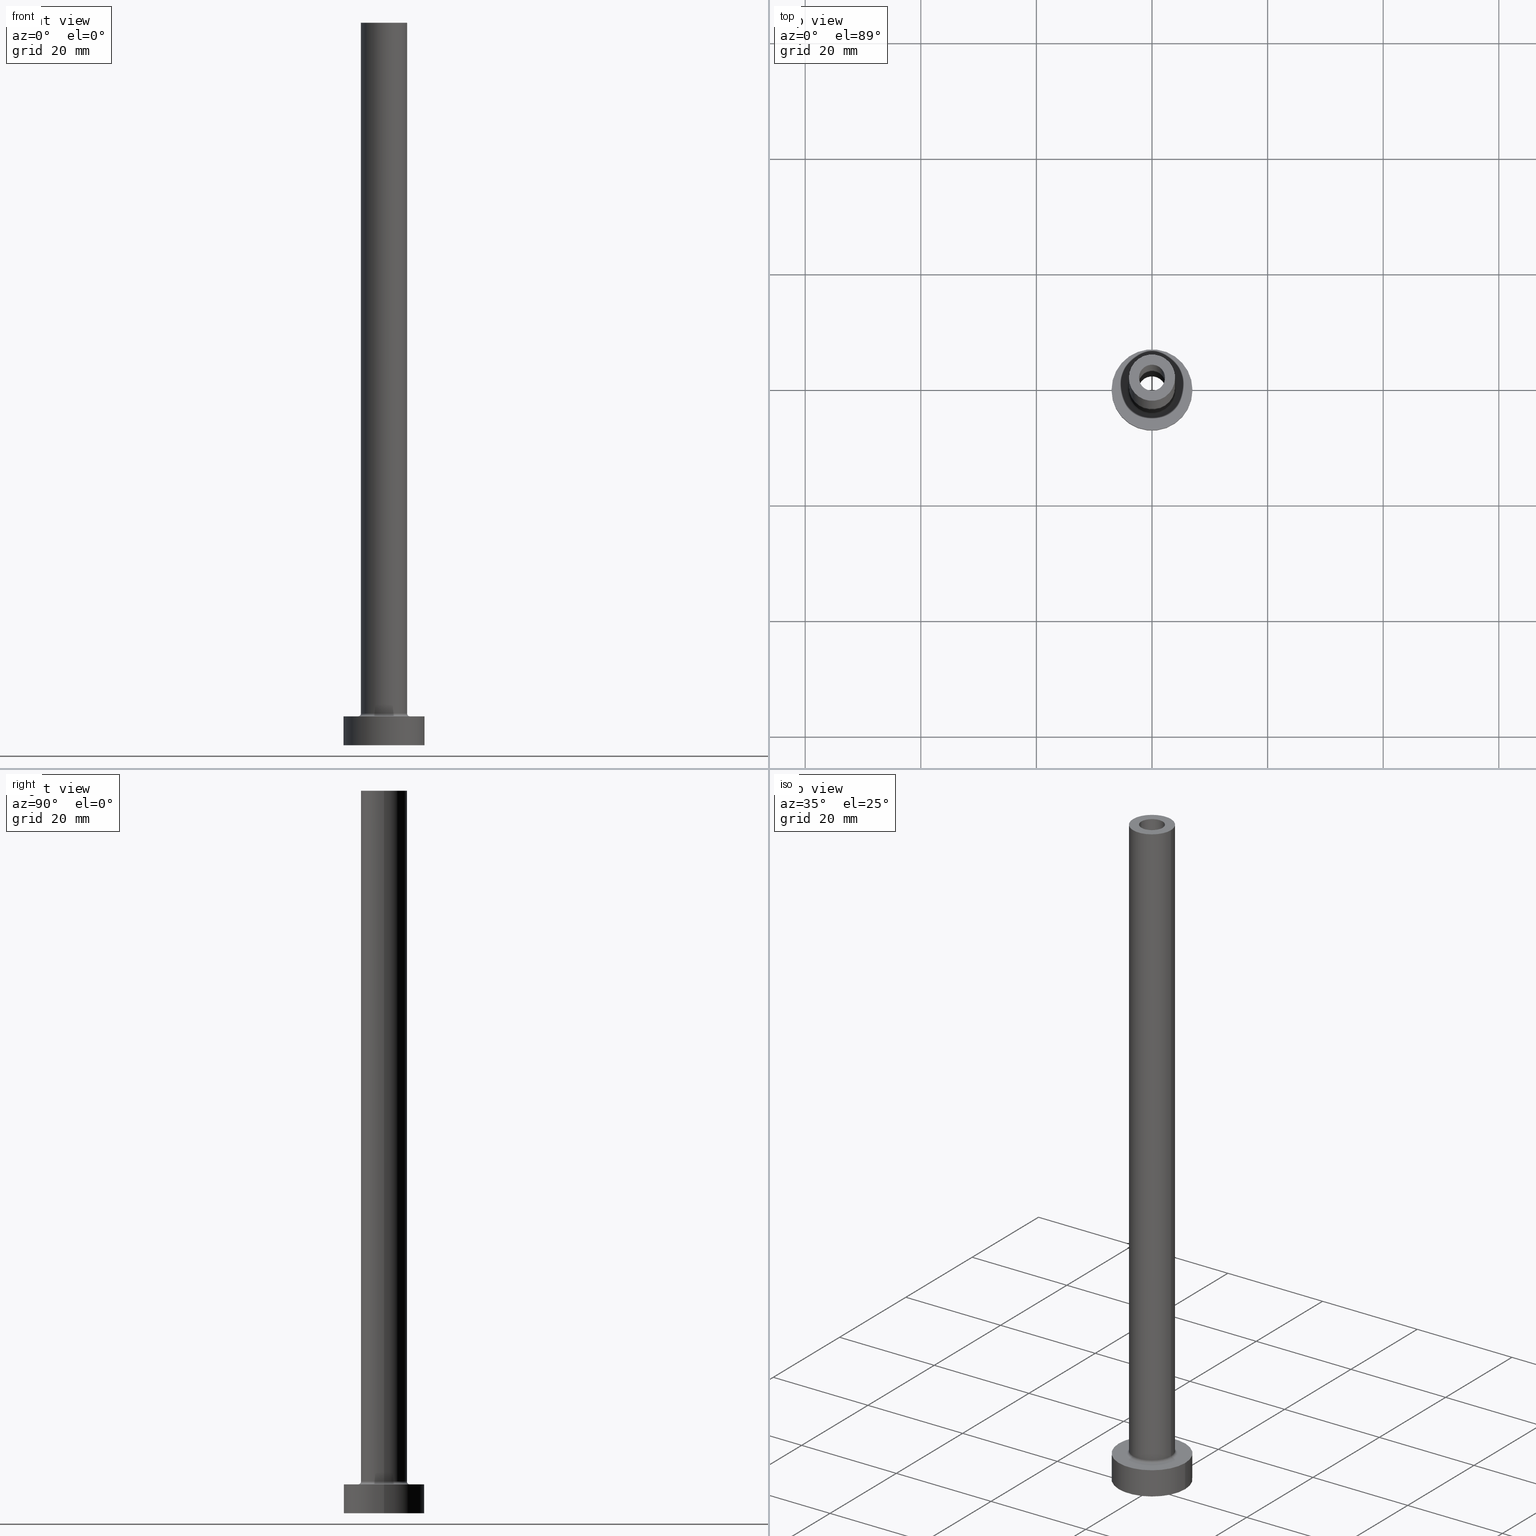
[diagram: canonical four-view strip — front | top / right | iso, engineering-drawing reading convention]
A machine part, canonical four-view strip (front | top / right | iso — engineering-drawing reading convention). The complete STEP part file that produces these views, byte-faithful:
ISO-10303-21;
HEADER;
FILE_DESCRIPTION (( 'STEP AP203' ),
    '1' );
FILE_NAME ('51bd.STEP',
    '2023-02-13T11:05:41',
    ( '' ),
    ( '' ),
    'SwSTEP 2.0',
    'SolidWorks 2019',
    '' );
FILE_SCHEMA (( 'CONFIG_CONTROL_DESIGN' ));
ENDSEC;

DATA;
#1 = AXIS2_PLACEMENT_3D ( 'NONE', #297, #437, #441 ) ;
#2 = DIRECTION ( 'NONE',  ( 0.000000000000000000, 0.000000000000000000, 1.000000000000000000 ) ) ;
#3 = VECTOR ( 'NONE', #90, 1000.000000000000000 ) ;
#4 = CARTESIAN_POINT ( 'NONE',  ( 0.000000000000000000, 0.000000000000000000, 80.00000000000000000 ) ) ;
#5 = DIRECTION ( 'NONE',  ( 0.000000000000000000, 0.000000000000000000, 1.000000000000000000 ) ) ;
#6 = DIRECTION ( 'NONE',  ( 1.000000000000000000, 0.000000000000000000, 0.000000000000000000 ) ) ;
#7 = ORIENTED_EDGE ( 'NONE', *, *, #442, .F. ) ;
#8 = CARTESIAN_POINT ( 'NONE',  ( 2.399999999999999911, 2.939152317953647106E-16, 86.78822509939087126 ) ) ;
#9 = LOCAL_TIME ( 12, 5, 41.00000000000000000, #350 ) ;
#10 = DIRECTION ( 'NONE',  ( 0.000000000000000000, 0.000000000000000000, 1.000000000000000000 ) ) ;
#11 = CARTESIAN_POINT ( 'NONE',  ( -2.250000000000000000, 0.000000000000000000, 125.0000000000000000 ) ) ;
#12 = AXIS2_PLACEMENT_3D ( 'NONE', #337, #231, #136 ) ;
#13 = CC_DESIGN_PERSON_AND_ORGANIZATION_ASSIGNMENT ( #420, #170, ( #176 ) ) ;
#14 = FACE_OUTER_BOUND ( 'NONE', #38, .T. ) ;
#15 = VERTEX_POINT ( 'NONE', #429 ) ;
#16 = VECTOR ( 'NONE', #100, 1000.000000000000000 ) ;
#17 = ORIENTED_EDGE ( 'NONE', *, *, #81, .T. ) ;
#18 = CALENDAR_DATE ( 2023, 13, 2 ) ;
#19 = DIRECTION ( 'NONE',  ( -0.000000000000000000, -0.000000000000000000, -1.000000000000000000 ) ) ;
#20 = EDGE_CURVE ( 'NONE', #15, #394, #424, .T. ) ;
#21 = ORIENTED_EDGE ( 'NONE', *, *, #334, .T. ) ;
#22 = CYLINDRICAL_SURFACE ( 'NONE', #256, 2.250000000000000000 ) ;
#23 = AXIS2_PLACEMENT_3D ( 'NONE', #348, #215, #139 ) ;
#24 = CC_DESIGN_APPROVAL ( #92, ( #265 ) ) ;
#25 = VERTEX_POINT ( 'NONE', #229 ) ;
#26 = DIRECTION ( 'NONE',  ( 1.000000000000000000, 0.000000000000000000, 0.000000000000000000 ) ) ;
#27 = DESIGN_CONTEXT ( 'detailed design', #362, 'design' ) ;
#28 = DIRECTION ( 'NONE',  ( 1.000000000000000000, 0.000000000000000000, 0.000000000000000000 ) ) ;
#29 = LOCAL_TIME ( 12, 5, 41.00000000000000000, #214 ) ;
#30 = CARTESIAN_POINT ( 'NONE',  ( 0.000000000000000000, 0.000000000000000000, 0.000000000000000000 ) ) ;
#31 = EDGE_CURVE ( 'NONE', #450, #247, #70, .T. ) ;
#32 = EDGE_LOOP ( 'NONE', ( #228, #202 ) ) ;
#33 = DIRECTION ( 'NONE',  ( 0.000000000000000000, 0.000000000000000000, -1.000000000000000000 ) ) ;
#34 = COORDINATED_UNIVERSAL_TIME_OFFSET ( 1, 0, .AHEAD. ) ;
#35 = DIRECTION ( 'NONE',  ( 0.000000000000000000, 0.000000000000000000, 1.000000000000000000 ) ) ;
#36 = CIRCLE ( 'NONE', #248, 2.399999999999999911 ) ;
#37 = CARTESIAN_POINT ( 'NONE',  ( -4.500000000000000888, 5.510910596163088569E-16, 5.000000000000002665 ) ) ;
#38 = EDGE_LOOP ( 'NONE', ( #232, #427 ) ) ;
#39 = CARTESIAN_POINT ( 'NONE',  ( 2.250000000000000000, 2.755455298081543792E-16, 125.0000000000000000 ) ) ;
#40 = LINE ( 'NONE', #329, #299 ) ;
#41 = AXIS2_PLACEMENT_3D ( 'NONE', #262, #93, #86 ) ;
#42 = ORIENTED_EDGE ( 'NONE', *, *, #391, .T. ) ;
#43 = CARTESIAN_POINT ( 'NONE',  ( 0.000000000000000000, 0.000000000000000000, 0.000000000000000000 ) ) ;
#44 = AXIS2_PLACEMENT_3D ( 'NONE', #360, #428, #6 ) ;
#45 = DIRECTION ( 'NONE',  ( 1.000000000000000000, 0.000000000000000000, 0.000000000000000000 ) ) ;
#46 = CC_DESIGN_DATE_AND_TIME_ASSIGNMENT ( #277, #377, ( #326 ) ) ;
#47 = CYLINDRICAL_SURFACE ( 'NONE', #294, 2.250000000000000000 ) ;
#48 = VERTEX_POINT ( 'NONE', #366 ) ;
#49 = EDGE_CURVE ( 'NONE', #436, #15, #135, .T. ) ;
#50 = CARTESIAN_POINT ( 'NONE',  ( -7.000000000000000000, 0.000000000000000000, 5.000000000000000000 ) ) ;
#51 = ORIENTED_EDGE ( 'NONE', *, *, #20, .T. ) ;
#52 = AXIS2_PLACEMENT_3D ( 'NONE', #342, #206, #26 ) ;
#53 = CARTESIAN_POINT ( 'NONE',  ( 4.000000000000000000, 4.898587196589412829E-16, 5.500000000000005329 ) ) ;
#54 = VERTEX_POINT ( 'NONE', #125 ) ;
#55 = CIRCLE ( 'NONE', #367, 4.000000000000000000 ) ;
#56 = APPROVAL_STATUS ( 'not_yet_approved' ) ;
#57 = EDGE_CURVE ( 'NONE', #62, #54, #323, .T. ) ;
#58 = CYLINDRICAL_SURFACE ( 'NONE', #168, 4.000000000000000000 ) ;
#59 = ADVANCED_FACE ( 'NONE', ( #187 ), #298, .F. ) ;
#60 = FACE_OUTER_BOUND ( 'NONE', #335, .T. ) ;
#61 = ORIENTED_EDGE ( 'NONE', *, *, #152, .T. ) ;
#62 = VERTEX_POINT ( 'NONE', #155 ) ;
#63 = AXIS2_PLACEMENT_3D ( 'NONE', #353, #35, #115 ) ;
#64 = CIRCLE ( 'NONE', #63, 4.000000000000000000 ) ;
#65 = ORIENTED_EDGE ( 'NONE', *, *, #131, .F. ) ;
#66 = CIRCLE ( 'NONE', #241, 4.000000000000000000 ) ;
#67 = DIRECTION ( 'NONE',  ( -1.000000000000000000, 0.000000000000000000, 0.000000000000000000 ) ) ;
#68 = ORIENTED_EDGE ( 'NONE', *, *, #152, .F. ) ;
#69 = ORIENTED_EDGE ( 'NONE', *, *, #310, .F. ) ;
#70 = CIRCLE ( 'NONE', #234, 0.5000000000000004441 ) ;
#71 = PERSON_AND_ORGANIZATION ( #147, #316 ) ;
#72 = ADVANCED_FACE ( 'NONE', ( #293, #191 ), #158, .T. ) ;
#73 = DIRECTION ( 'NONE',  ( 0.000000000000000000, 0.000000000000000000, 1.000000000000000000 ) ) ;
#74 = EDGE_CURVE ( 'NONE', #169, #394, #190, .T. ) ;
#75 = CALENDAR_DATE ( 2023, 13, 2 ) ;
#76 = DIRECTION ( 'NONE',  ( 1.000000000000000000, 0.000000000000000000, 0.000000000000000000 ) ) ;
#77 = CC_DESIGN_PERSON_AND_ORGANIZATION_ASSIGNMENT ( #308, #242, ( #176 ) ) ;
#78 = APPROVAL_STATUS ( 'not_yet_approved' ) ;
#79 = DIRECTION ( 'NONE',  ( 1.000000000000000000, 0.000000000000000000, 0.000000000000000000 ) ) ;
#80 = DIRECTION ( 'NONE',  ( 0.000000000000000000, 0.000000000000000000, 1.000000000000000000 ) ) ;
#81 = EDGE_CURVE ( 'NONE', #269, #54, #205, .T. ) ;
#82 = CIRCLE ( 'NONE', #287, 7.000000000000000000 ) ;
#83 = CARTESIAN_POINT ( 'NONE',  ( 0.000000000000000000, 0.000000000000000000, 80.00000000000000000 ) ) ;
#84 = VERTEX_POINT ( 'NONE', #446 ) ;
#85 = CARTESIAN_POINT ( 'NONE',  ( 0.000000000000000000, 0.000000000000000000, 5.000000000000000000 ) ) ;
#86 = DIRECTION ( 'NONE',  ( 1.000000000000000000, 0.000000000000000000, 0.000000000000000000 ) ) ;
#87 = APPROVAL ( #78, 'NEUR�EN�' ) ;
#88 = CIRCLE ( 'NONE', #1, 7.000000000000000000 ) ;
#89 = EDGE_CURVE ( 'NONE', #291, #376, #385, .T. ) ;
#90 = DIRECTION ( 'NONE',  ( -0.000000000000000000, -0.000000000000000000, -1.000000000000000000 ) ) ;
#91 = CIRCLE ( 'NONE', #113, 4.500000000000000888 ) ;
#92 = APPROVAL ( #56, 'NEUR�EN�' ) ;
#93 = DIRECTION ( 'NONE',  ( -0.000000000000000000, -0.000000000000000000, -1.000000000000000000 ) ) ;
#94 = DIRECTION ( 'NONE',  ( -0.000000000000000000, -0.000000000000000000, -1.000000000000000000 ) ) ;
#95 = ORIENTED_EDGE ( 'NONE', *, *, #292, .F. ) ;
#96 = ORIENTED_EDGE ( 'NONE', *, *, #131, .T. ) ;
#97 = ADVANCED_FACE ( 'NONE', ( #60 ), #303, .T. ) ;
#98 = AXIS2_PLACEMENT_3D ( 'NONE', #218, #414, #212 ) ;
#99 = ORIENTED_EDGE ( 'NONE', *, *, #310, .T. ) ;
#100 = DIRECTION ( 'NONE',  ( -0.000000000000000000, -0.000000000000000000, -1.000000000000000000 ) ) ;
#101 = DIRECTION ( 'NONE',  ( 0.000000000000000000, 0.000000000000000000, -1.000000000000000000 ) ) ;
#102 = AXIS2_PLACEMENT_3D ( 'NONE', #251, #390, #356 ) ;
#103 = CARTESIAN_POINT ( 'NONE',  ( 0.000000000000000000, 0.000000000000000000, 80.00000000000000000 ) ) ;
#104 = DIRECTION ( 'NONE',  ( 0.000000000000000000, 0.000000000000000000, 1.000000000000000000 ) ) ;
#105 = APPROVAL_PERSON_ORGANIZATION ( #280, #213, #107 ) ;
#106 = PRODUCT ( '51bd', '51bd', '', ( #459 ) ) ;
#107 = APPROVAL_ROLE ( '' ) ;
#108 = DIRECTION ( 'NONE',  ( -0.000000000000000000, -0.000000000000000000, -1.000000000000000000 ) ) ;
#109 = EDGE_LOOP ( 'NONE', ( #388, #180, #320, #134 ) ) ;
#110 = DATE_AND_TIME ( #453, #9 ) ;
#111 = DIRECTION ( 'NONE',  ( 1.000000000000000000, 0.000000000000000000, 0.000000000000000000 ) ) ;
#112 = FACE_OUTER_BOUND ( 'NONE', #244, .T. ) ;
#113 = AXIS2_PLACEMENT_3D ( 'NONE', #85, #94, #154 ) ;
#114 = APPROVAL_STATUS ( 'not_yet_approved' ) ;
#115 = DIRECTION ( 'NONE',  ( 1.000000000000000000, 0.000000000000000000, 0.000000000000000000 ) ) ;
#116 = CARTESIAN_POINT ( 'NONE',  ( 0.000000000000000000, 0.000000000000000000, 125.0000000000000000 ) ) ;
#117 = EDGE_LOOP ( 'NONE', ( #284, #21 ) ) ;
#118 = AXIS2_PLACEMENT_3D ( 'NONE', #271, #309, #142 ) ;
#119 = CARTESIAN_POINT ( 'NONE',  ( 0.000000000000000000, 0.000000000000000000, 5.000000000000000000 ) ) ;
#120 = PLANE ( 'NONE',  #387 ) ;
#121 = CARTESIAN_POINT ( 'NONE',  ( 7.000000000000000000, 8.572527594031473190E-16, 5.000000000000000000 ) ) ;
#122 = ADVANCED_FACE ( 'NONE', ( #405 ), #198, .F. ) ;
#123 = CARTESIAN_POINT ( 'NONE',  ( 4.000000000000000000, 4.898587196589412829E-16, 125.0000000000000000 ) ) ;
#124 = VECTOR ( 'NONE', #253, 1000.000000000000000 ) ;
#125 = CARTESIAN_POINT ( 'NONE',  ( -2.399999999999999911, 0.000000000000000000, 0.000000000000000000 ) ) ;
#126 = CC_DESIGN_APPROVAL ( #87, ( #326 ) ) ;
#127 = CARTESIAN_POINT ( 'NONE',  ( 0.000000000000000000, 0.000000000000000000, 5.500000000000005329 ) ) ;
#128 = ORIENTED_EDGE ( 'NONE', *, *, #411, .T. ) ;
#129 = CARTESIAN_POINT ( 'NONE',  ( 0.000000000000000000, 0.000000000000000000, 125.0000000000000000 ) ) ;
#130 = DIRECTION ( 'NONE',  ( 1.224646799147353207E-16, 1.000000000000000000, -0.000000000000000000 ) ) ;
#131 = EDGE_CURVE ( 'NONE', #15, #436, #88, .T. ) ;
#132 = FACE_OUTER_BOUND ( 'NONE', #109, .T. ) ;
#133 = ORIENTED_EDGE ( 'NONE', *, *, #364, .T. ) ;
#134 = ORIENTED_EDGE ( 'NONE', *, *, #391, .F. ) ;
#135 = CIRCLE ( 'NONE', #407, 7.000000000000000000 ) ;
#136 = DIRECTION ( 'NONE',  ( 1.000000000000000000, 0.000000000000000000, -0.000000000000000000 ) ) ;
#137 = TOROIDAL_SURFACE ( 'NONE', #160, 4.500000000000000888, 0.5000000000000000000 ) ;
#138 = ORIENTED_EDGE ( 'NONE', *, *, #425, .F. ) ;
#139 = DIRECTION ( 'NONE',  ( 0.000000000000000000, 0.000000000000000000, -1.000000000000000000 ) ) ;
#140 = ADVANCED_FACE ( 'NONE', ( #132 ), #22, .F. ) ;
#141 = PERSON_AND_ORGANIZATION_ROLE ( 'creator' ) ;
#142 = DIRECTION ( 'NONE',  ( -1.000000000000000000, 0.000000000000000000, 0.000000000000000000 ) ) ;
#143 = VERTEX_POINT ( 'NONE', #384 ) ;
#144 = PRODUCT_DEFINITION_SHAPE ( 'NONE', 'NONE',  #326 ) ;
#145 = CALENDAR_DATE ( 2023, 13, 2 ) ;
#146 = FACE_OUTER_BOUND ( 'NONE', #399, .T. ) ;
#147 = PERSON ( 'NEUR�EN�', 'NEUR�EN�', 'NEUR�EN�', ('NEUR�EN�'), ('NEUR�EN�'), ('NEUR�EN�') ) ;
#148 = AXIS2_PLACEMENT_3D ( 'NONE', #129, #261, #398 ) ;
#149 = FACE_BOUND ( 'NONE', #117, .T. ) ;
#150 = CARTESIAN_POINT ( 'NONE',  ( -2.399999999999999911, 0.000000000000000000, 80.00000000000000000 ) ) ;
#151 = EDGE_CURVE ( 'NONE', #450, #447, #64, .T. ) ;
#152 = EDGE_CURVE ( 'NONE', #447, #370, #314, .T. ) ;
#153 = DIRECTION ( 'NONE',  ( 1.000000000000000000, 0.000000000000000000, 0.000000000000000000 ) ) ;
#154 = DIRECTION ( 'NONE',  ( 1.000000000000000000, 0.000000000000000000, 0.000000000000000000 ) ) ;
#155 = CARTESIAN_POINT ( 'NONE',  ( 2.399999999999999911, 2.939152317953647106E-16, 0.000000000000000000 ) ) ;
#156 = CIRCLE ( 'NONE', #98, 2.250000000000000000 ) ;
#157 = PLANE ( 'NONE',  #148 ) ;
#158 = PLANE ( 'NONE',  #12 ) ;
#159 = APPLICATION_PROTOCOL_DEFINITION ( 'international standard', 'config_control_design', 1994, #319 ) ;
#160 = AXIS2_PLACEMENT_3D ( 'NONE', #283, #379, #76 ) ;
#161 = EDGE_CURVE ( 'NONE', #369, #84, #452, .T. ) ;
#162 = ORIENTED_EDGE ( 'NONE', *, *, #31, .F. ) ;
#163 = CC_DESIGN_PERSON_AND_ORGANIZATION_ASSIGNMENT ( #71, #208, ( #265 ) ) ;
#164 = ORIENTED_EDGE ( 'NONE', *, *, #371, .T. ) ;
#165 = ADVANCED_FACE ( 'NONE', ( #243 ), #239, .F. ) ;
#166 = CALENDAR_DATE ( 2023, 13, 2 ) ;
#167 = CARTESIAN_POINT ( 'NONE',  ( 0.000000000000000000, 0.000000000000000000, 125.0000000000000000 ) ) ;
#168 = AXIS2_PLACEMENT_3D ( 'NONE', #374, #19, #67 ) ;
#169 = VERTEX_POINT ( 'NONE', #315 ) ;
#170 = PERSON_AND_ORGANIZATION_ROLE ( 'creator' ) ;
#171 = DIRECTION ( 'NONE',  ( 0.000000000000000000, 0.000000000000000000, 1.000000000000000000 ) ) ;
#172 = ORIENTED_EDGE ( 'NONE', *, *, #57, .F. ) ;
#173 = APPROVAL_DATE_TIME ( #240, #87 ) ;
#174 = DIRECTION ( 'NONE',  ( 1.000000000000000000, 0.000000000000000000, 0.000000000000000000 ) ) ;
#175 = DIRECTION ( 'NONE',  ( -1.000000000000000000, 0.000000000000000000, 0.000000000000000000 ) ) ;
#176 = PRODUCT_DEFINITION_FORMATION_WITH_SPECIFIED_SOURCE ( 'LIBOVOLN�', '', #106, .NOT_KNOWN. ) ;
#177 = CC_DESIGN_SECURITY_CLASSIFICATION ( #265, ( #176 ) ) ;
#178 = FACE_OUTER_BOUND ( 'NONE', #343, .T. ) ;
#179 = DIRECTION ( 'NONE',  ( -0.000000000000000000, -0.000000000000000000, -1.000000000000000000 ) ) ;
#180 = ORIENTED_EDGE ( 'NONE', *, *, #431, .T. ) ;
#181 = DIRECTION ( 'NONE',  ( 1.000000000000000000, 0.000000000000000000, 0.000000000000000000 ) ) ;
#182 = ORIENTED_EDGE ( 'NONE', *, *, #442, .T. ) ;
#183 = AXIS2_PLACEMENT_3D ( 'NONE', #454, #274, #175 ) ;
#184 = CARTESIAN_POINT ( 'NONE',  ( -7.000000000000000000, 0.000000000000000000, 5.000000000000000000 ) ) ;
#185 = ORIENTED_EDGE ( 'NONE', *, *, #352, .F. ) ;
#186 = CARTESIAN_POINT ( 'NONE',  ( 0.000000000000000000, 0.000000000000000000, 0.000000000000000000 ) ) ;
#187 = FACE_OUTER_BOUND ( 'NONE', #302, .T. ) ;
#188 = FACE_BOUND ( 'NONE', #32, .T. ) ;
#189 = MANIFOLD_SOLID_BREP ( 'Odebrat vysunut�m4', #439 ) ;
#190 = CIRCLE ( 'NONE', #415, 7.000000000000000000 ) ;
#191 = FACE_OUTER_BOUND ( 'NONE', #330, .T. ) ;
#192 = CIRCLE ( 'NONE', #395, 2.399999999999999911 ) ;
#193 = FACE_OUTER_BOUND ( 'NONE', #237, .T. ) ;
#194 = LOCAL_TIME ( 12, 5, 41.00000000000000000, #451 ) ;
#195 = EDGE_LOOP ( 'NONE', ( #445, #201 ) ) ;
#196 = PERSON_AND_ORGANIZATION ( #147, #316 ) ;
#197 = LINE ( 'NONE', #204, #16 ) ;
#198 = CYLINDRICAL_SURFACE ( 'NONE', #340, 2.399999999999999911 ) ;
#199 = ADVANCED_FACE ( 'NONE', ( #149, #178 ), #386, .F. ) ;
#200 = EDGE_CURVE ( 'NONE', #394, #169, #82, .T. ) ;
#201 = ORIENTED_EDGE ( 'NONE', *, *, #200, .F. ) ;
#202 = ORIENTED_EDGE ( 'NONE', *, *, #216, .F. ) ;
#203 = APPROVAL_DATE_TIME ( #304, #92 ) ;
#204 = CARTESIAN_POINT ( 'NONE',  ( 4.000000000000000000, 4.898587196589412829E-16, 125.0000000000000000 ) ) ;
#205 = LINE ( 'NONE', #368, #448 ) ;
#206 = DIRECTION ( 'NONE',  ( 0.000000000000000000, 0.000000000000000000, 1.000000000000000000 ) ) ;
#207 = ORIENTED_EDGE ( 'NONE', *, *, #216, .T. ) ;
#208 = PERSON_AND_ORGANIZATION_ROLE ( 'classification_officer' ) ;
#209 = DIRECTION ( 'NONE',  ( 1.000000000000000000, 0.000000000000000000, -0.000000000000000000 ) ) ;
#210 = CC_DESIGN_APPROVAL ( #213, ( #176 ) ) ;
#211 = APPLICATION_PROTOCOL_DEFINITION ( 'international standard', 'config_control_design', 1994, #362 ) ;
#212 = DIRECTION ( 'NONE',  ( 1.000000000000000000, 0.000000000000000000, 0.000000000000000000 ) ) ;
#213 = APPROVAL ( #114, 'NEUR�EN�' ) ;
#214 = COORDINATED_UNIVERSAL_TIME_OFFSET ( 1, 0, .AHEAD. ) ;
#215 = DIRECTION ( 'NONE',  ( 0.000000000000000000, -1.000000000000000000, 0.000000000000000000 ) ) ;
#216 = EDGE_CURVE ( 'NONE', #376, #291, #433, .T. ) ;
#217 = ORIENTED_EDGE ( 'NONE', *, *, #151, .F. ) ;
#218 = CARTESIAN_POINT ( 'NONE',  ( 0.000000000000000000, 0.000000000000000000, 80.00000000000000000 ) ) ;
#219 = VECTOR ( 'NONE', #226, 1000.000000000000000 ) ;
#220 = DIRECTION ( 'NONE',  ( 1.000000000000000000, 0.000000000000000000, 0.000000000000000000 ) ) ;
#221 = ORIENTED_EDGE ( 'NONE', *, *, #200, .T. ) ;
#222 = ADVANCED_FACE ( 'NONE', ( #146 ), #456, .T. ) ;
#223 = CARTESIAN_POINT ( 'NONE',  ( -4.500000000000000888, 5.510910596163089556E-16, 5.500000000000005329 ) ) ;
#224 = ORIENTED_EDGE ( 'NONE', *, *, #49, .T. ) ;
#225 = AXIS2_PLACEMENT_3D ( 'NONE', #119, #423, #181 ) ;
#226 = DIRECTION ( 'NONE',  ( 0.000000000000000000, 0.000000000000000000, -1.000000000000000000 ) ) ;
#227 = DIRECTION ( 'NONE',  ( 0.000000000000000000, 0.000000000000000000, -1.000000000000000000 ) ) ;
#228 = ORIENTED_EDGE ( 'NONE', *, *, #89, .F. ) ;
#229 = CARTESIAN_POINT ( 'NONE',  ( -2.250000000000000000, 0.000000000000000000, 80.00000000000000000 ) ) ;
#230 = AXIS2_PLACEMENT_3D ( 'NONE', #300, #2, #111 ) ;
#231 = DIRECTION ( 'NONE',  ( 0.000000000000000000, 0.000000000000000000, 1.000000000000000000 ) ) ;
#232 = ORIENTED_EDGE ( 'NONE', *, *, #264, .T. ) ;
#233 = EDGE_CURVE ( 'NONE', #25, #48, #156, .T. ) ;
#234 = AXIS2_PLACEMENT_3D ( 'NONE', #223, #130, #296 ) ;
#235 = CIRCLE ( 'NONE', #317, 2.399999999999999911 ) ;
#236 = APPROVAL_ROLE ( '' ) ;
#237 = EDGE_LOOP ( 'NONE', ( #313, #346, #133, #282 ) ) ;
#238 = SECURITY_CLASSIFICATION_LEVEL ( 'unclassified' ) ;
#239 = CYLINDRICAL_SURFACE ( 'NONE', #183, 2.399999999999999911 ) ;
#240 = DATE_AND_TIME ( #166, #378 ) ;
#241 = AXIS2_PLACEMENT_3D ( 'NONE', #167, #5, #79 ) ;
#242 = PERSON_AND_ORGANIZATION_ROLE ( 'design_supplier' ) ;
#243 = FACE_OUTER_BOUND ( 'NONE', #419, .T. ) ;
#244 = EDGE_LOOP ( 'NONE', ( #162, #138, #61, #95 ) ) ;
#245 = DIRECTION ( 'NONE',  ( -1.000000000000000000, 0.000000000000000000, 0.000000000000000000 ) ) ;
#246 = ORIENTED_EDGE ( 'NONE', *, *, #249, .F. ) ;
#247 = VERTEX_POINT ( 'NONE', #37 ) ;
#248 = AXIS2_PLACEMENT_3D ( 'NONE', #186, #179, #153 ) ;
#249 = EDGE_CURVE ( 'NONE', #143, #269, #235, .T. ) ;
#250 = DIRECTION ( 'NONE',  ( 0.000000000000000000, 0.000000000000000000, -1.000000000000000000 ) ) ;
#251 = CARTESIAN_POINT ( 'NONE',  ( 0.000000000000000000, 0.000000000000000000, 5.500000000000005329 ) ) ;
#252 = LINE ( 'NONE', #11, #373 ) ;
#253 = DIRECTION ( 'NONE',  ( -0.000000000000000000, -0.000000000000000000, -1.000000000000000000 ) ) ;
#254 = DIRECTION ( 'NONE',  ( 1.000000000000000000, 0.000000000000000000, -0.000000000000000000 ) ) ;
#255 = ORIENTED_EDGE ( 'NONE', *, *, #364, .F. ) ;
#256 = AXIS2_PLACEMENT_3D ( 'NONE', #116, #33, #245 ) ;
#257 =( GEOMETRIC_REPRESENTATION_CONTEXT ( 3 ) GLOBAL_UNCERTAINTY_ASSIGNED_CONTEXT ( ( #355 ) ) GLOBAL_UNIT_ASSIGNED_CONTEXT ( ( #344, #440, #403 ) ) REPRESENTATION_CONTEXT ( 'NONE', 'WORKASPACE' ) );
#258 = DIRECTION ( 'NONE',  ( 0.000000000000000000, 0.000000000000000000, 1.000000000000000000 ) ) ;
#259 = CC_DESIGN_DATE_AND_TIME_ASSIGNMENT ( #455, #413, ( #265 ) ) ;
#260 = ORIENTED_EDGE ( 'NONE', *, *, #461, .T. ) ;
#261 = DIRECTION ( 'NONE',  ( 0.000000000000000000, 0.000000000000000000, 1.000000000000000000 ) ) ;
#262 = CARTESIAN_POINT ( 'NONE',  ( 0.000000000000000000, 0.000000000000000000, 0.000000000000000000 ) ) ;
#263 = DIRECTION ( 'NONE',  ( 1.000000000000000000, 0.000000000000000000, 0.000000000000000000 ) ) ;
#264 = EDGE_CURVE ( 'NONE', #84, #369, #66, .T. ) ;
#265 = SECURITY_CLASSIFICATION ( '', '', #238 ) ;
#266 = ORIENTED_EDGE ( 'NONE', *, *, #334, .F. ) ;
#267 = DIRECTION ( 'NONE',  ( -1.000000000000000000, 0.000000000000000000, 0.000000000000000000 ) ) ;
#268 = EDGE_LOOP ( 'NONE', ( #65, #51, #221, #457 ) ) ;
#269 = VERTEX_POINT ( 'NONE', #150 ) ;
#270 = AXIS2_PLACEMENT_3D ( 'NONE', #421, #80, #412 ) ;
#271 = CARTESIAN_POINT ( 'NONE',  ( 0.000000000000000000, 0.000000000000000000, 5.000000000000000000 ) ) ;
#272 = ORIENTED_EDGE ( 'NONE', *, *, #292, .T. ) ;
#273 = APPROVAL_DATE_TIME ( #110, #213 ) ;
#274 = DIRECTION ( 'NONE',  ( 0.000000000000000000, 0.000000000000000000, -1.000000000000000000 ) ) ;
#275 = AXIS2_PLACEMENT_3D ( 'NONE', #409, #108, #267 ) ;
#276 = ADVANCED_FACE ( 'NONE', ( #112 ), #137, .F. ) ;
#277 = DATE_AND_TIME ( #145, #29 ) ;
#278 = CARTESIAN_POINT ( 'NONE',  ( -2.250000000000000000, 0.000000000000000000, 125.0000000000000000 ) ) ;
#279 = CIRCLE ( 'NONE', #44, 2.250000000000000000 ) ;
#280 = PERSON_AND_ORGANIZATION ( #147, #316 ) ;
#281 = DIRECTION ( 'NONE',  ( 0.000000000000000000, 0.000000000000000000, 1.000000000000000000 ) ) ;
#282 = ORIENTED_EDGE ( 'NONE', *, *, #151, .T. ) ;
#283 = CARTESIAN_POINT ( 'NONE',  ( 0.000000000000000000, 0.000000000000000000, 5.500000000000005329 ) ) ;
#284 = ORIENTED_EDGE ( 'NONE', *, *, #233, .T. ) ;
#285 = FACE_OUTER_BOUND ( 'NONE', #301, .T. ) ;
#286 = ORIENTED_EDGE ( 'NONE', *, *, #31, .T. ) ;
#287 = AXIS2_PLACEMENT_3D ( 'NONE', #30, #171, #174 ) ;
#288 = ORIENTED_EDGE ( 'NONE', *, *, #74, .T. ) ;
#289 = ADVANCED_FACE ( 'NONE', ( #307 ), #349, .T. ) ;
#290 = CARTESIAN_POINT ( 'NONE',  ( 4.500000000000000888, 0.000000000000000000, 5.000000000000002665 ) ) ;
#291 = VERTEX_POINT ( 'NONE', #278 ) ;
#292 = EDGE_CURVE ( 'NONE', #247, #370, #325, .T. ) ;
#293 = FACE_BOUND ( 'NONE', #324, .T. ) ;
#294 = AXIS2_PLACEMENT_3D ( 'NONE', #327, #250, #321 ) ;
#295 = FACE_OUTER_BOUND ( 'NONE', #195, .T. ) ;
#296 = DIRECTION ( 'NONE',  ( -1.000000000000000000, 1.224646799147351482E-16, 0.000000000000000000 ) ) ;
#297 = CARTESIAN_POINT ( 'NONE',  ( 0.000000000000000000, 0.000000000000000000, 5.000000000000000000 ) ) ;
#298 = TOROIDAL_SURFACE ( 'NONE', #102, 4.500000000000000888, 0.5000000000000000000 ) ;
#299 = VECTOR ( 'NONE', #389, 1000.000000000000000 ) ;
#300 = CARTESIAN_POINT ( 'NONE',  ( 0.000000000000000000, 0.000000000000000000, 0.000000000000000000 ) ) ;
#301 = EDGE_LOOP ( 'NONE', ( #363, #207, #42, #266 ) ) ;
#302 = EDGE_LOOP ( 'NONE', ( #217, #286, #397, #68 ) ) ;
#303 = CYLINDRICAL_SURFACE ( 'NONE', #275, 4.000000000000000000 ) ;
#304 = DATE_AND_TIME ( #18, #194 ) ;
#305 = PERSON_AND_ORGANIZATION ( #147, #316 ) ;
#306 = AXIS2_PLACEMENT_3D ( 'NONE', #351, #281, #220 ) ;
#307 = FACE_OUTER_BOUND ( 'NONE', #268, .T. ) ;
#308 = PERSON_AND_ORGANIZATION ( #147, #316 ) ;
#309 = DIRECTION ( 'NONE',  ( -0.000000000000000000, -0.000000000000000000, -1.000000000000000000 ) ) ;
#310 = EDGE_CURVE ( 'NONE', #54, #62, #36, .T. ) ;
#311 = PERSON_AND_ORGANIZATION ( #147, #316 ) ;
#312 = CARTESIAN_POINT ( 'NONE',  ( 0.000000000000000000, 0.000000000000000000, 5.000000000000000000 ) ) ;
#313 = ORIENTED_EDGE ( 'NONE', *, *, #461, .F. ) ;
#314 = CIRCLE ( 'NONE', #23, 0.5000000000000004441 ) ;
#315 = CARTESIAN_POINT ( 'NONE',  ( -7.000000000000000000, 0.000000000000000000, 0.000000000000000000 ) ) ;
#316 = ORGANIZATION ( 'NEUR�EN�', 'NEUR�EN�', '' ) ;
#317 = AXIS2_PLACEMENT_3D ( 'NONE', #83, #381, #28 ) ;
#318 = ORIENTED_EDGE ( 'NONE', *, *, #57, .T. ) ;
#319 = APPLICATION_CONTEXT ( 'configuration controlled 3d designs of mechanical parts and assemblies' ) ;
#320 = ORIENTED_EDGE ( 'NONE', *, *, #233, .F. ) ;
#321 = DIRECTION ( 'NONE',  ( -1.000000000000000000, 0.000000000000000000, 0.000000000000000000 ) ) ;
#322 = ORIENTED_EDGE ( 'NONE', *, *, #49, .F. ) ;
#323 = CIRCLE ( 'NONE', #41, 2.399999999999999911 ) ;
#324 = EDGE_LOOP ( 'NONE', ( #164, #272 ) ) ;
#325 = CIRCLE ( 'NONE', #225, 4.500000000000000888 ) ;
#326 = PRODUCT_DEFINITION ( 'NEZN�M�', '', #176, #27 ) ;
#327 = CARTESIAN_POINT ( 'NONE',  ( 0.000000000000000000, 0.000000000000000000, 125.0000000000000000 ) ) ;
#328 = ORIENTED_EDGE ( 'NONE', *, *, #249, .T. ) ;
#329 = CARTESIAN_POINT ( 'NONE',  ( -4.000000000000000000, 0.000000000000000000, 125.0000000000000000 ) ) ;
#330 = EDGE_LOOP ( 'NONE', ( #224, #96 ) ) ;
#331 = DIRECTION ( 'NONE',  ( 0.000000000000000000, 0.000000000000000000, -1.000000000000000000 ) ) ;
#332 = EDGE_LOOP ( 'NONE', ( #185, #328, #17, #99 ) ) ;
#333 = CARTESIAN_POINT ( 'NONE',  ( -4.000000000000000000, 0.000000000000000000, 5.500000000000005329 ) ) ;
#334 = EDGE_CURVE ( 'NONE', #48, #25, #279, .T. ) ;
#335 = EDGE_LOOP ( 'NONE', ( #432, #260, #410, #255 ) ) ;
#336 = CARTESIAN_POINT ( 'NONE',  ( 0.000000000000000000, 0.000000000000000000, 86.78822509939087126 ) ) ;
#337 = CARTESIAN_POINT ( 'NONE',  ( 0.000000000000000000, 0.000000000000000000, 5.000000000000000000 ) ) ;
#338 = ORIENTED_EDGE ( 'NONE', *, *, #20, .F. ) ;
#339 = SHAPE_DEFINITION_REPRESENTATION ( #144, #383 ) ;
#340 = AXIS2_PLACEMENT_3D ( 'NONE', #336, #101, #375 ) ;
#341 = AXIS2_PLACEMENT_3D ( 'NONE', #4, #73, #209 ) ;
#342 = CARTESIAN_POINT ( 'NONE',  ( 0.000000000000000000, 0.000000000000000000, 125.0000000000000000 ) ) ;
#343 = EDGE_LOOP ( 'NONE', ( #7, #246 ) ) ;
#344 =( LENGTH_UNIT ( ) NAMED_UNIT ( * ) SI_UNIT ( .MILLI., .METRE. ) );
#345 = PERSON_AND_ORGANIZATION_ROLE ( 'design_owner' ) ;
#346 = ORIENTED_EDGE ( 'NONE', *, *, #264, .F. ) ;
#347 = APPROVAL_ROLE ( '' ) ;
#348 = CARTESIAN_POINT ( 'NONE',  ( 4.500000000000000888, 0.000000000000000000, 5.500000000000005329 ) ) ;
#349 = CYLINDRICAL_SURFACE ( 'NONE', #417, 7.000000000000000000 ) ;
#350 = COORDINATED_UNIVERSAL_TIME_OFFSET ( 1, 0, .AHEAD. ) ;
#351 = CARTESIAN_POINT ( 'NONE',  ( 0.000000000000000000, 0.000000000000000000, 125.0000000000000000 ) ) ;
#352 = EDGE_CURVE ( 'NONE', #143, #62, #358, .T. ) ;
#353 = CARTESIAN_POINT ( 'NONE',  ( 0.000000000000000000, 0.000000000000000000, 5.500000000000005329 ) ) ;
#354 = LOCAL_TIME ( 12, 5, 41.00000000000000000, #380 ) ;
#355 = UNCERTAINTY_MEASURE_WITH_UNIT (LENGTH_MEASURE( 1.000000000000000082E-05 ), #344, 'distance_accuracy_value', 'NONE');
#356 = DIRECTION ( 'NONE',  ( 1.000000000000000000, 0.000000000000000000, 0.000000000000000000 ) ) ;
#357 = ADVANCED_FACE ( 'NONE', ( #285 ), #47, .F. ) ;
#358 = LINE ( 'NONE', #8, #219 ) ;
#359 = DIRECTION ( 'NONE',  ( 0.000000000000000000, 0.000000000000000000, 1.000000000000000000 ) ) ;
#360 = CARTESIAN_POINT ( 'NONE',  ( 0.000000000000000000, 0.000000000000000000, 80.00000000000000000 ) ) ;
#361 = LINE ( 'NONE', #434, #443 ) ;
#362 = APPLICATION_CONTEXT ( 'configuration controlled 3d designs of mechanical parts and assemblies' ) ;
#363 = ORIENTED_EDGE ( 'NONE', *, *, #431, .F. ) ;
#364 = EDGE_CURVE ( 'NONE', #84, #450, #40, .T. ) ;
#365 = DIRECTION ( 'NONE',  ( 0.000000000000000000, 0.000000000000000000, 1.000000000000000000 ) ) ;
#366 = CARTESIAN_POINT ( 'NONE',  ( 2.250000000000000000, 2.755455298081543792E-16, 80.00000000000000000 ) ) ;
#367 = AXIS2_PLACEMENT_3D ( 'NONE', #127, #258, #396 ) ;
#368 = CARTESIAN_POINT ( 'NONE',  ( -2.399999999999999911, 0.000000000000000000, 86.78822509939087126 ) ) ;
#369 = VERTEX_POINT ( 'NONE', #123 ) ;
#370 = VERTEX_POINT ( 'NONE', #290 ) ;
#371 = EDGE_CURVE ( 'NONE', #370, #247, #91, .T. ) ;
#372 = EDGE_LOOP ( 'NONE', ( #69, #172 ) ) ;
#373 = VECTOR ( 'NONE', #331, 1000.000000000000000 ) ;
#374 = CARTESIAN_POINT ( 'NONE',  ( 0.000000000000000000, 0.000000000000000000, 125.0000000000000000 ) ) ;
#375 = DIRECTION ( 'NONE',  ( -1.000000000000000000, 0.000000000000000000, 0.000000000000000000 ) ) ;
#376 = VERTEX_POINT ( 'NONE', #39 ) ;
#377 = DATE_TIME_ROLE ( 'creation_date' ) ;
#378 = LOCAL_TIME ( 12, 5, 41.00000000000000000, #34 ) ;
#379 = DIRECTION ( 'NONE',  ( 0.000000000000000000, 0.000000000000000000, 1.000000000000000000 ) ) ;
#380 = COORDINATED_UNIVERSAL_TIME_OFFSET ( 1, 0, .AHEAD. ) ;
#381 = DIRECTION ( 'NONE',  ( 0.000000000000000000, 0.000000000000000000, 1.000000000000000000 ) ) ;
#382 = ADVANCED_FACE ( 'NONE', ( #426, #295 ), #120, .F. ) ;
#383 = ADVANCED_BREP_SHAPE_REPRESENTATION ( '51bd', ( #189, #230 ), #257 ) ;
#384 = CARTESIAN_POINT ( 'NONE',  ( 2.399999999999999911, 2.939152317953647106E-16, 80.00000000000000000 ) ) ;
#385 = CIRCLE ( 'NONE', #52, 2.250000000000000000 ) ;
#386 = PLANE ( 'NONE',  #341 ) ;
#387 = AXIS2_PLACEMENT_3D ( 'NONE', #43, #10, #254 ) ;
#388 = ORIENTED_EDGE ( 'NONE', *, *, #89, .T. ) ;
#389 = DIRECTION ( 'NONE',  ( -0.000000000000000000, -0.000000000000000000, -1.000000000000000000 ) ) ;
#390 = DIRECTION ( 'NONE',  ( 0.000000000000000000, 0.000000000000000000, 1.000000000000000000 ) ) ;
#391 = EDGE_CURVE ( 'NONE', #291, #25, #252, .T. ) ;
#392 = CARTESIAN_POINT ( 'NONE',  ( 7.000000000000000000, 8.572527594031473190E-16, 0.000000000000000000 ) ) ;
#393 = CARTESIAN_POINT ( 'NONE',  ( 0.000000000000000000, 0.000000000000000000, 5.000000000000000000 ) ) ;
#394 = VERTEX_POINT ( 'NONE', #392 ) ;
#395 = AXIS2_PLACEMENT_3D ( 'NONE', #103, #365, #404 ) ;
#396 = DIRECTION ( 'NONE',  ( 1.000000000000000000, 0.000000000000000000, 0.000000000000000000 ) ) ;
#397 = ORIENTED_EDGE ( 'NONE', *, *, #371, .F. ) ;
#398 = DIRECTION ( 'NONE',  ( 1.000000000000000000, 0.000000000000000000, -0.000000000000000000 ) ) ;
#399 = EDGE_LOOP ( 'NONE', ( #338, #322, #128, #288 ) ) ;
#400 = CARTESIAN_POINT ( 'NONE',  ( 0.000000000000000000, 0.000000000000000000, 0.000000000000000000 ) ) ;
#401 = APPROVAL_PERSON_ORGANIZATION ( #311, #87, #347 ) ;
#402 = CC_DESIGN_PERSON_AND_ORGANIZATION_ASSIGNMENT ( #416, #345, ( #106 ) ) ;
#403 =( NAMED_UNIT ( * ) SI_UNIT ( $, .STERADIAN. ) SOLID_ANGLE_UNIT ( ) );
#404 = DIRECTION ( 'NONE',  ( 1.000000000000000000, 0.000000000000000000, 0.000000000000000000 ) ) ;
#405 = FACE_OUTER_BOUND ( 'NONE', #332, .T. ) ;
#406 = ORIENTED_EDGE ( 'NONE', *, *, #352, .T. ) ;
#407 = AXIS2_PLACEMENT_3D ( 'NONE', #393, #359, #45 ) ;
#408 = APPROVAL_PERSON_ORGANIZATION ( #196, #92, #236 ) ;
#409 = CARTESIAN_POINT ( 'NONE',  ( 0.000000000000000000, 0.000000000000000000, 125.0000000000000000 ) ) ;
#410 = ORIENTED_EDGE ( 'NONE', *, *, #425, .T. ) ;
#411 = EDGE_CURVE ( 'NONE', #436, #169, #430, .T. ) ;
#412 = DIRECTION ( 'NONE',  ( 1.000000000000000000, 0.000000000000000000, 0.000000000000000000 ) ) ;
#413 = DATE_TIME_ROLE ( 'classification_date' ) ;
#414 = DIRECTION ( 'NONE',  ( 0.000000000000000000, 0.000000000000000000, 1.000000000000000000 ) ) ;
#415 = AXIS2_PLACEMENT_3D ( 'NONE', #400, #104, #263 ) ;
#416 = PERSON_AND_ORGANIZATION ( #147, #316 ) ;
#417 = AXIS2_PLACEMENT_3D ( 'NONE', #312, #418, #460 ) ;
#418 = DIRECTION ( 'NONE',  ( -0.000000000000000000, -0.000000000000000000, -1.000000000000000000 ) ) ;
#419 = EDGE_LOOP ( 'NONE', ( #182, #406, #318, #422 ) ) ;
#420 = PERSON_AND_ORGANIZATION ( #147, #316 ) ;
#421 = CARTESIAN_POINT ( 'NONE',  ( 0.000000000000000000, 0.000000000000000000, 125.0000000000000000 ) ) ;
#422 = ORIENTED_EDGE ( 'NONE', *, *, #81, .F. ) ;
#423 = DIRECTION ( 'NONE',  ( -0.000000000000000000, -0.000000000000000000, -1.000000000000000000 ) ) ;
#424 = LINE ( 'NONE', #121, #124 ) ;
#425 = EDGE_CURVE ( 'NONE', #447, #450, #55, .T. ) ;
#426 = FACE_BOUND ( 'NONE', #372, .T. ) ;
#427 = ORIENTED_EDGE ( 'NONE', *, *, #161, .T. ) ;
#428 = DIRECTION ( 'NONE',  ( 0.000000000000000000, 0.000000000000000000, 1.000000000000000000 ) ) ;
#429 = CARTESIAN_POINT ( 'NONE',  ( 7.000000000000000000, 8.572527594031473190E-16, 5.000000000000000000 ) ) ;
#430 = LINE ( 'NONE', #184, #3 ) ;
#431 = EDGE_CURVE ( 'NONE', #376, #48, #361, .T. ) ;
#432 = ORIENTED_EDGE ( 'NONE', *, *, #161, .F. ) ;
#433 = CIRCLE ( 'NONE', #270, 2.250000000000000000 ) ;
#434 = CARTESIAN_POINT ( 'NONE',  ( 2.250000000000000000, 2.755455298081543792E-16, 125.0000000000000000 ) ) ;
#435 = PRODUCT_RELATED_PRODUCT_CATEGORY ( 'detail', '', ( #106 ) ) ;
#436 = VERTEX_POINT ( 'NONE', #50 ) ;
#437 = DIRECTION ( 'NONE',  ( 0.000000000000000000, 0.000000000000000000, 1.000000000000000000 ) ) ;
#438 = ADVANCED_FACE ( 'NONE', ( #188, #14 ), #157, .T. ) ;
#439 = CLOSED_SHELL ( 'NONE', ( #140, #165, #59, #97, #289, #222, #72, #382, #449, #438, #276, #122, #199, #357 ) ) ;
#440 =( NAMED_UNIT ( * ) PLANE_ANGLE_UNIT ( ) SI_UNIT ( $, .RADIAN. ) );
#441 = DIRECTION ( 'NONE',  ( 1.000000000000000000, 0.000000000000000000, 0.000000000000000000 ) ) ;
#442 = EDGE_CURVE ( 'NONE', #269, #143, #192, .T. ) ;
#443 = VECTOR ( 'NONE', #227, 1000.000000000000000 ) ;
#444 = DIRECTION ( 'NONE',  ( 0.000000000000000000, 0.000000000000000000, -1.000000000000000000 ) ) ;
#445 = ORIENTED_EDGE ( 'NONE', *, *, #74, .F. ) ;
#446 = CARTESIAN_POINT ( 'NONE',  ( -4.000000000000000000, 0.000000000000000000, 125.0000000000000000 ) ) ;
#447 = VERTEX_POINT ( 'NONE', #53 ) ;
#448 = VECTOR ( 'NONE', #444, 1000.000000000000000 ) ;
#449 = ADVANCED_FACE ( 'NONE', ( #193 ), #58, .T. ) ;
#450 = VERTEX_POINT ( 'NONE', #333 ) ;
#451 = COORDINATED_UNIVERSAL_TIME_OFFSET ( 1, 0, .AHEAD. ) ;
#452 = CIRCLE ( 'NONE', #306, 4.000000000000000000 ) ;
#453 = CALENDAR_DATE ( 2023, 13, 2 ) ;
#454 = CARTESIAN_POINT ( 'NONE',  ( 0.000000000000000000, 0.000000000000000000, 86.78822509939087126 ) ) ;
#455 = DATE_AND_TIME ( #75, #354 ) ;
#456 = CYLINDRICAL_SURFACE ( 'NONE', #118, 7.000000000000000000 ) ;
#457 = ORIENTED_EDGE ( 'NONE', *, *, #411, .F. ) ;
#458 = CC_DESIGN_PERSON_AND_ORGANIZATION_ASSIGNMENT ( #305, #141, ( #326 ) ) ;
#459 = MECHANICAL_CONTEXT ( 'NONE', #319, 'mechanical' ) ;
#460 = DIRECTION ( 'NONE',  ( -1.000000000000000000, 0.000000000000000000, 0.000000000000000000 ) ) ;
#461 = EDGE_CURVE ( 'NONE', #369, #447, #197, .T. ) ;
ENDSEC;
END-ISO-10303-21;
